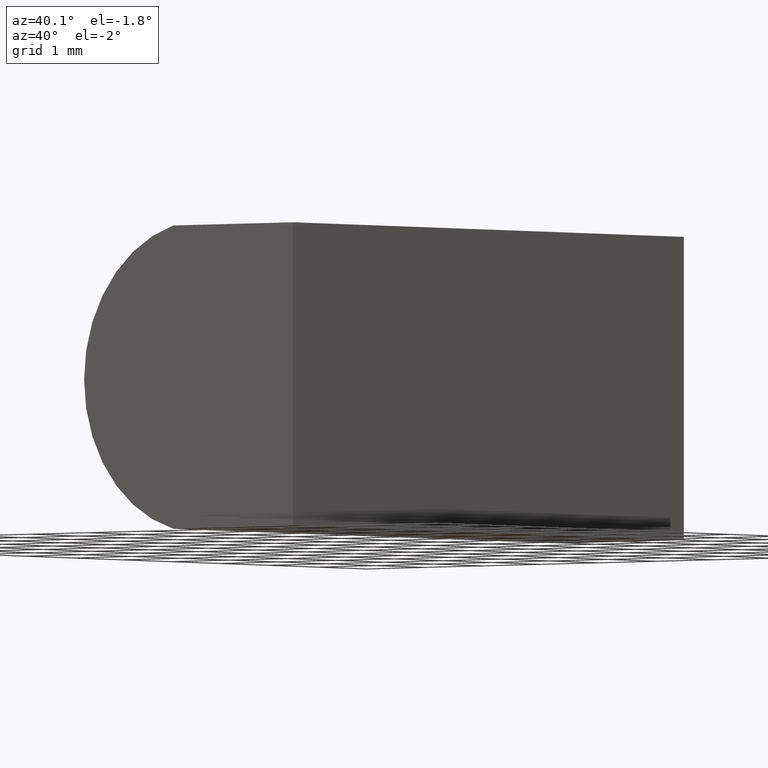
[diagram: clean part render]
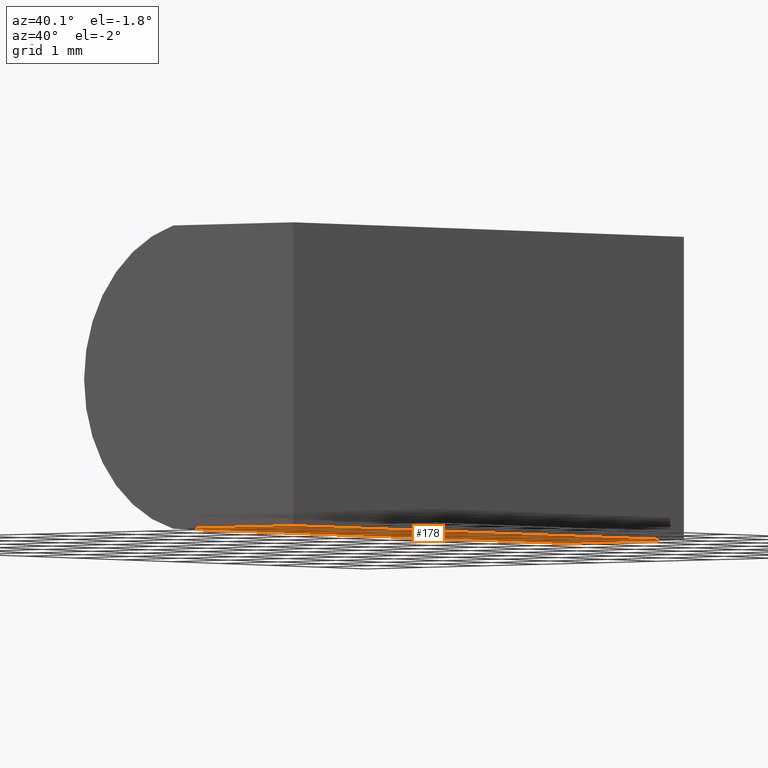
[diagram: same view with one face highlighted and labeled with its STEP entity id]
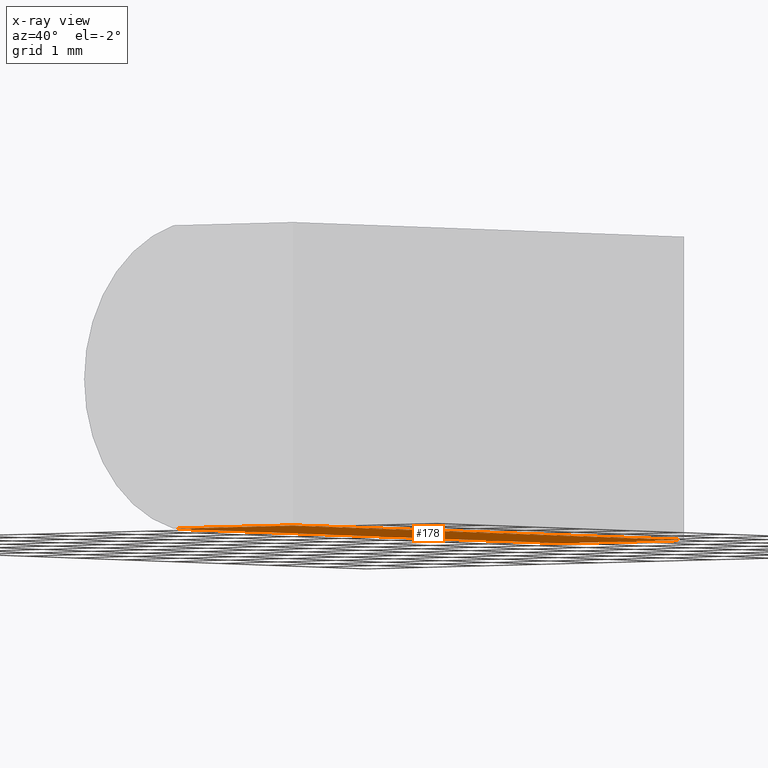
[diagram: x-ray of the same camera — body ghosted, the highlighted face saturated]
A machine part, auxiliary view. The second image highlights one B-rep face of the part: STEP entity #178.
The next image is the same camera in x-ray: the body ghosted, the highlighted face saturated — about 0% of this face is hidden behind the body in this view.
In plain terms, the highlighted planar face has unit normal (0, -0, 1).
Its self-contained STEP definition (entity closure, byte-faithful):
#6 = ORIENTED_EDGE ( 'NONE', *, *, #197, .T. ) ;
#17 = DIRECTION ( 'NONE',  ( -0.0000000000000000000, -1.000000000000000000, -0.0000000000000000000 ) ) ;
#23 = VERTEX_POINT ( 'NONE', #136 ) ;
#24 = CARTESIAN_POINT ( 'NONE',  ( 0.0000000000000000000, 8.000000000000000000, 0.0000000000000000000 ) ) ;
#35 = ORIENTED_EDGE ( 'NONE', *, *, #52, .F. ) ;
#37 = CARTESIAN_POINT ( 'NONE',  ( -2.063760245803298400, 8.000000000000000000, -4.336808689942017700E-016 ) ) ;
#42 = AXIS2_PLACEMENT_3D ( 'NONE', #89, #181, #143 ) ;
#43 = VECTOR ( 'NONE', #17, 1000.000000000000000 ) ;
#45 = LINE ( 'NONE', #154, #64 ) ;
#52 = EDGE_CURVE ( 'NONE', #76, #113, #112, .T. ) ;
#57 = LINE ( 'NONE', #187, #175 ) ;
#64 = VECTOR ( 'NONE', #188, 1000.000000000000000 ) ;
#66 = CARTESIAN_POINT ( 'NONE',  ( -2.063760245803298400, 0.0000000000000000000, -4.336808689942017700E-016 ) ) ;
#73 = VERTEX_POINT ( 'NONE', #173 ) ;
#76 = VERTEX_POINT ( 'NONE', #37 ) ;
#82 = VECTOR ( 'NONE', #137, 1000.000000000000000 ) ;
#89 = CARTESIAN_POINT ( 'NONE',  ( 0.0000000000000000000, 8.000000000000000000, 0.0000000000000000000 ) ) ;
#112 = LINE ( 'NONE', #132, #43 ) ;
#113 = VERTEX_POINT ( 'NONE', #66 ) ;
#116 = PLANE ( 'NONE',  #42 ) ;
#119 = FACE_OUTER_BOUND ( 'NONE', #162, .T. ) ;
#132 = CARTESIAN_POINT ( 'NONE',  ( -2.063760245803298400, 8.000000000000000000, -4.336808689942017700E-016 ) ) ;
#136 = CARTESIAN_POINT ( 'NONE',  ( 0.0000000000000000000, 0.0000000000000000000, 0.0000000000000000000 ) ) ;
#137 = DIRECTION ( 'NONE',  ( -0.0000000000000000000, -1.000000000000000000, -0.0000000000000000000 ) ) ;
#143 = DIRECTION ( 'NONE',  ( 1.000000000000000000, 0.0000000000000000000, -0.0000000000000000000 ) ) ;
#145 = ORIENTED_EDGE ( 'NONE', *, *, #182, .F. ) ;
#153 = ORIENTED_EDGE ( 'NONE', *, *, #191, .T. ) ;
#154 = CARTESIAN_POINT ( 'NONE',  ( 0.0000000000000000000, 0.0000000000000000000, 0.0000000000000000000 ) ) ;
#162 = EDGE_LOOP ( 'NONE', ( #153, #35, #145, #6 ) ) ;
#164 = DIRECTION ( 'NONE',  ( -1.000000000000000000, 0.0000000000000000000, 0.0000000000000000000 ) ) ;
#173 = CARTESIAN_POINT ( 'NONE',  ( 0.0000000000000000000, 8.000000000000000000, 0.0000000000000000000 ) ) ;
#175 = VECTOR ( 'NONE', #164, 1000.000000000000000 ) ;
#178 = ADVANCED_FACE ( 'NONE', ( #119 ), #116, .F. ) ;
#181 = DIRECTION ( 'NONE',  ( 0.0000000000000000000, -0.0000000000000000000, 1.000000000000000000 ) ) ;
#182 = EDGE_CURVE ( 'NONE', #73, #76, #57, .T. ) ;
#187 = CARTESIAN_POINT ( 'NONE',  ( 0.0000000000000000000, 8.000000000000000000, 0.0000000000000000000 ) ) ;
#188 = DIRECTION ( 'NONE',  ( -1.000000000000000000, 0.0000000000000000000, 0.0000000000000000000 ) ) ;
#191 = EDGE_CURVE ( 'NONE', #23, #113, #45, .T. ) ;
#196 = LINE ( 'NONE', #24, #82 ) ;
#197 = EDGE_CURVE ( 'NONE', #73, #23, #196, .T. ) ;